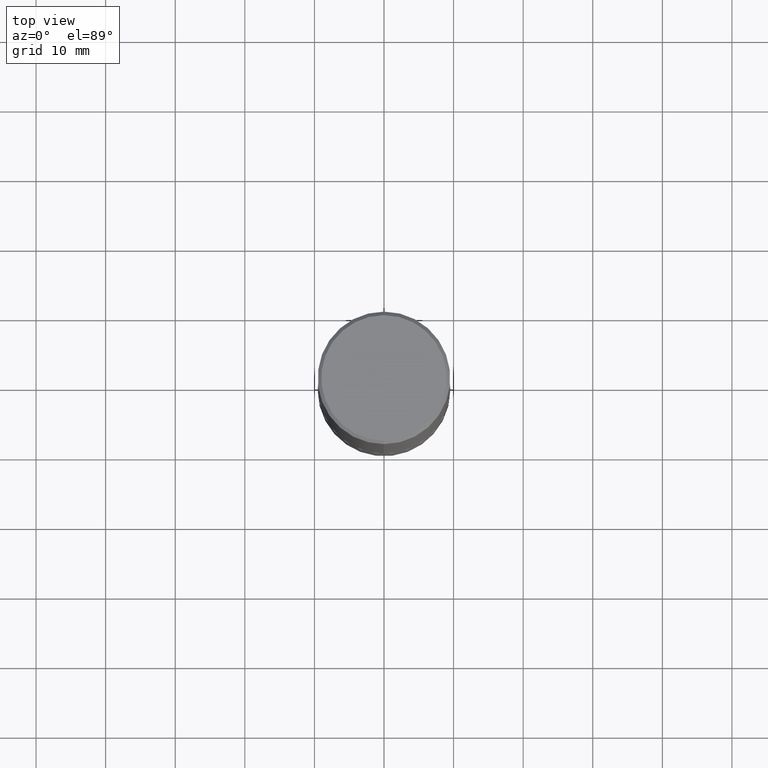
[diagram: clean part render]
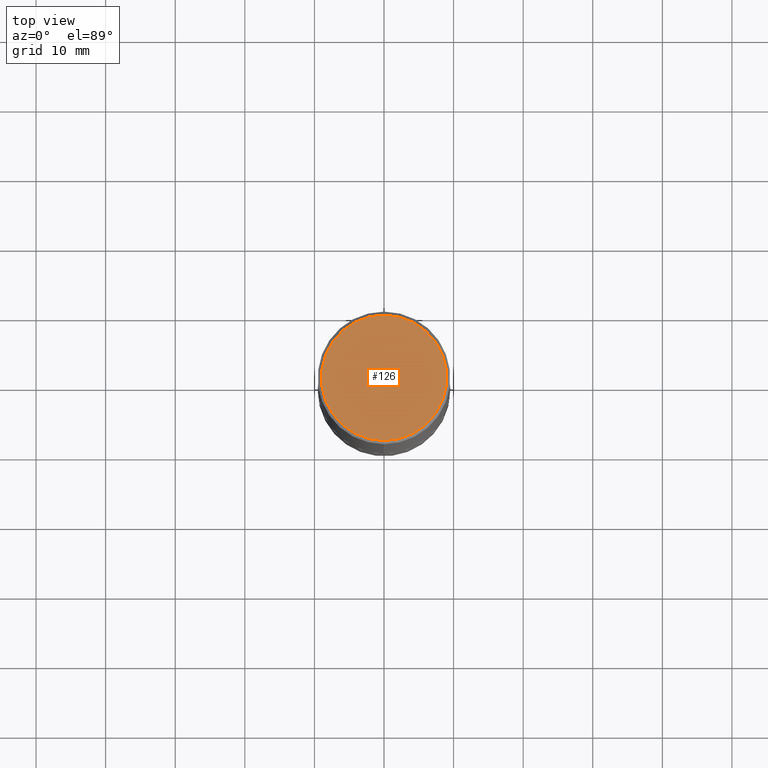
[diagram: same view with one face highlighted and labeled with its STEP entity id]
A machine part, top view. The second image highlights one B-rep face of the part: STEP entity #126.
In plain terms, the highlighted planar face has unit normal (0, -0, -1).
Its self-contained STEP definition (entity closure, byte-faithful):
#9 = FACE_OUTER_BOUND ( 'NONE', #237, .T. ) ;
#26 = DIRECTION ( 'NONE',  ( -2.445996322747269804E-29, 3.490725905101792415E-15, 1.000000000000000000 ) ) ;
#41 = EDGE_CURVE ( 'NONE', #404, #201, #135, .T. ) ;
#124 = CARTESIAN_POINT ( 'NONE',  ( -8.346053035564447328E-45, 1.191080430729187510E-30, 3.412128202298525830E-16 ) ) ;
#126 = ADVANCED_FACE ( 'NONE', ( #9 ), #129, .F. ) ;
#129 = PLANE ( 'NONE',  #173 ) ;
#135 = CIRCLE ( 'NONE', #202, 0.3549999999999995381 ) ;
#169 = CARTESIAN_POINT ( 'NONE',  ( 2.548781377355485929E-15, 0.3549999999999995381, -8.979948760812821111E-16 ) ) ;
#171 = ORIENTED_EDGE ( 'NONE', *, *, #305, .T. ) ;
#173 = AXIS2_PLACEMENT_3D ( 'NONE', #382, #229, #313 ) ;
#201 = VERTEX_POINT ( 'NONE', #406 ) ;
#202 = AXIS2_PLACEMENT_3D ( 'NONE', #124, #26, #377 ) ;
#229 = DIRECTION ( 'NONE',  ( 2.445996322747270084E-29, -3.490725905101792021E-15, -1.000000000000000000 ) ) ;
#237 = EDGE_LOOP ( 'NONE', ( #346, #171 ) ) ;
#275 = CIRCLE ( 'NONE', #292, 0.3549999999999995381 ) ;
#289 = CARTESIAN_POINT ( 'NONE',  ( -8.346053035564447328E-45, 1.191080430729187510E-30, 3.412128202298525830E-16 ) ) ;
#292 = AXIS2_PLACEMENT_3D ( 'NONE', #289, #355, #388 ) ;
#305 = EDGE_CURVE ( 'NONE', #201, #404, #275, .T. ) ;
#313 = DIRECTION ( 'NONE',  ( 6.982962677686265922E-15, 1.000000000000000000, -3.490725905101792021E-15 ) ) ;
#346 = ORIENTED_EDGE ( 'NONE', *, *, #41, .T. ) ;
#355 = DIRECTION ( 'NONE',  ( -2.445996322747269804E-29, 3.490725905101792415E-15, 1.000000000000000000 ) ) ;
#377 = DIRECTION ( 'NONE',  ( -6.982962677686266711E-15, -1.000000000000000000, 3.490725905101792415E-15 ) ) ;
#382 = CARTESIAN_POINT ( 'NONE',  ( 2.478951750578621448E-15, 0.3549999999999995381, -1.068601286196208575E-15 ) ) ;
#388 = DIRECTION ( 'NONE',  ( -6.982962677686266711E-15, -1.000000000000000000, 3.490725905101792415E-15 ) ) ;
#404 = VERTEX_POINT ( 'NONE', #169 ) ;
#406 = CARTESIAN_POINT ( 'NONE',  ( -2.504081769186606638E-15, -0.3549999999999995381, 1.580420516540987376E-15 ) ) ;